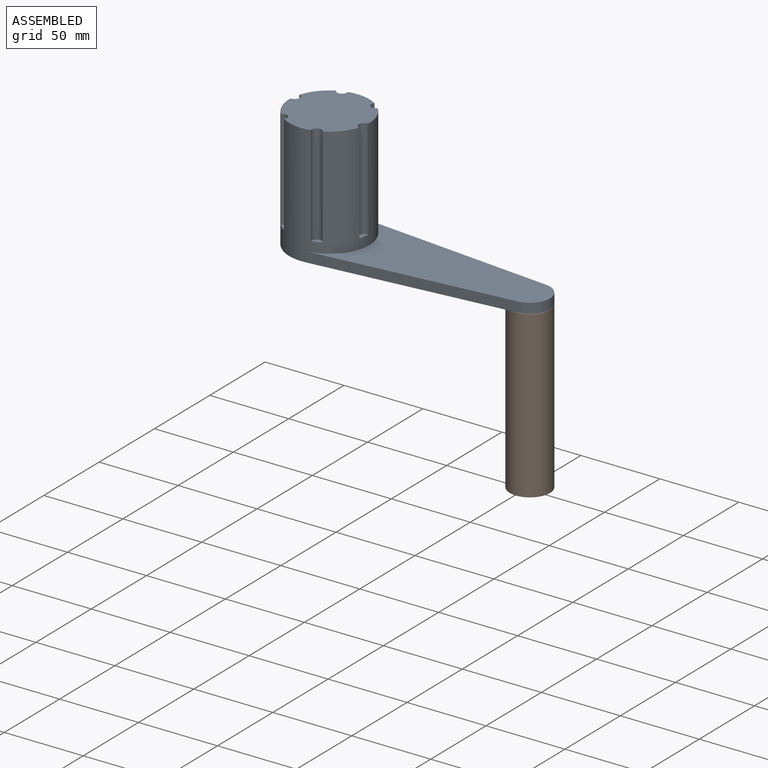
[diagram: assembled view]
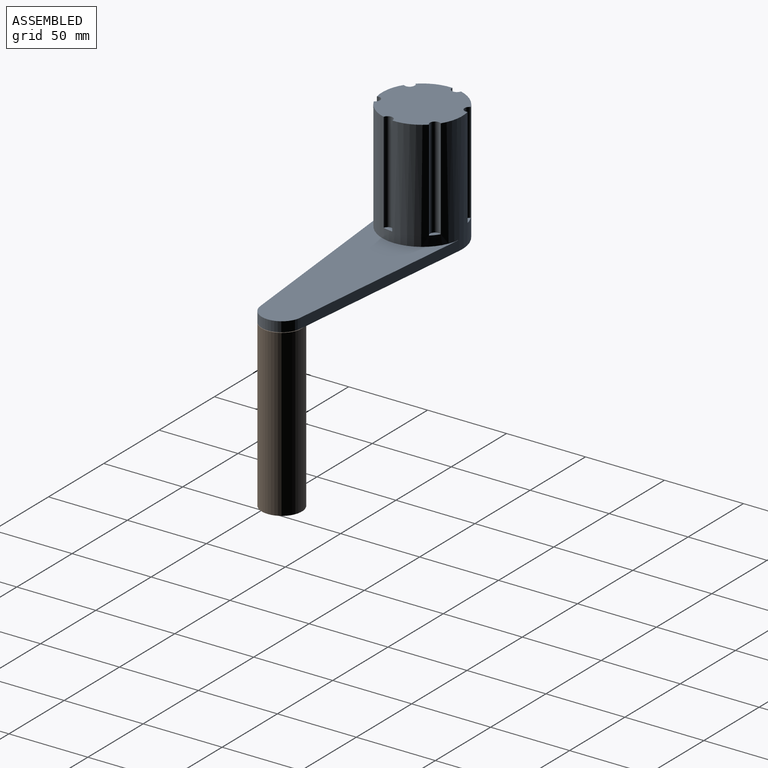
[diagram: assembled view, second angle]
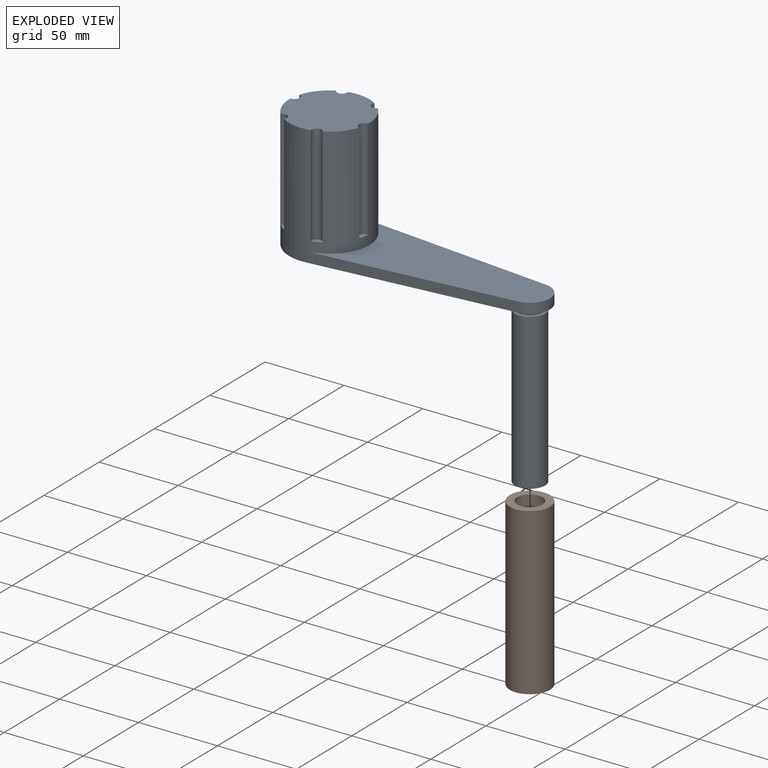
[diagram: exploded view]
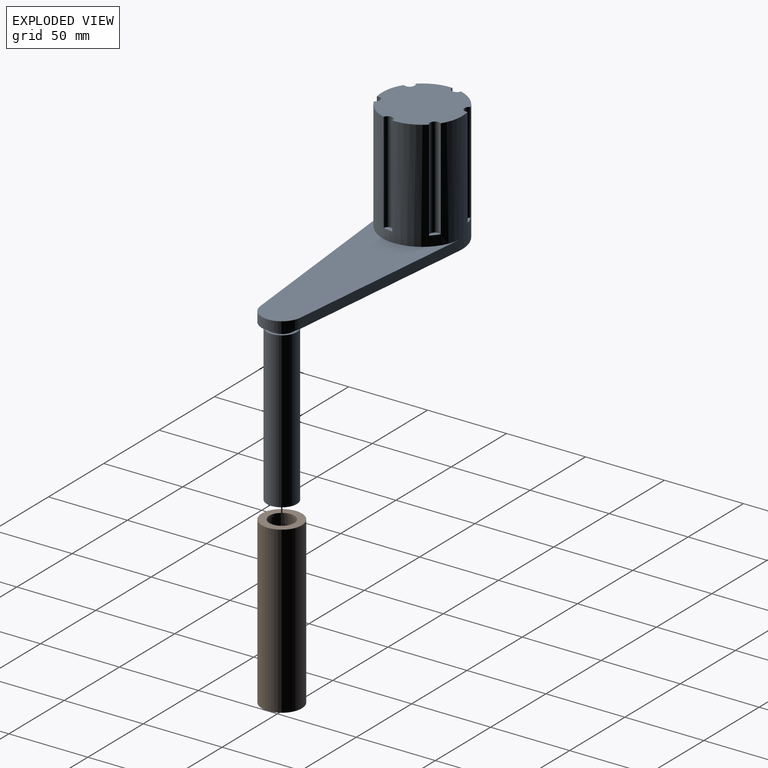
[diagram: exploded view, second angle]
ASSEMBLY  parts=2 mates=2
PART A: 23 faces, bbox 165.1x50.8x177.8 mm
  f0: plane 6.26x3.53mm, normal (0,0,1), area 15.4mm2, adj f1,f10
  f1: cylinder r=3.17mm len=63.5mm, axis (0,0,1), area 608.2mm2, adj f0,f10,f16
  f2: plane 5.48x5.06mm, normal (0,0,1), area 15.4mm2, adj f3,f10
  f3: cylinder r=3.17mm len=63.5mm, axis (0,0,1), area 608.2mm2, adj f2,f10,f16
  f4: plane 6.09x4.07mm, normal (0,0,1), area 15.4mm2, adj f5,f10
  f5: cylinder r=3.17mm len=63.5mm, axis (0,0,1), area 608.2mm2, adj f4,f10,f16
  f6: plane 6.26x3.53mm, normal (0,0,1), area 15.4mm2, adj f7,f10
  f7: cylinder r=3.17mm len=63.5mm, axis (0,0,1), area 608.2mm2, adj f6,f10,f16
  f8: plane 5.48x5.06mm, normal (0,0,1), area 15.4mm2, adj f9,f10
  f9: cylinder r=3.17mm len=63.5mm, axis (0,0,1), area 608.2mm2, adj f8,f10,f16
  f10: cylinder r=25.4mm len=76.2mm, axis (0,0,-1), area 9265.7mm2, adj f0,f1,f2,f3,f4,f5,f6,f7
  f11: plane 125.73x12.64mm, normal (0.1,-0.99,0), area 802.4mm2, adj f10,f12,f14,f15
  f12: cylinder r=12.7mm len=25.27mm, axis (0,0,-1), area 237.2mm2, adj f11,f13,f14,f15
  f13: plane 125.73x12.64mm, normal (0.1,0.99,0), area 802.4mm2, adj f10,f12,f14,f15
  f14: plane 137.16x50.55mm, normal (0,0,1), area 4102.9mm2, adj f10,f11,f12,f13
  f15: plane 165.1x50.8mm, normal (0,0,-1), area 5931.7mm2, adj f10,f11,f12,f13,f19
  f16: plane 50.8x50.8mm, normal (0,0,1), area 1934.3mm2, adj f1,f3,f5,f7,f9,f10,f18
  f17: plane 6.09x4.07mm, normal (0,0,1), area 15.4mm2, adj f10,f18
  f18: cylinder r=3.17mm len=63.5mm, axis (0,0,1), area 608.2mm2, adj f10,f16,f17
  f19: cylinder r=7.94mm len=15.88mm, axis (0,0,1), area 158.3mm2, adj f15,f20
  f20: plane 19.05x19.05mm, normal (0,0,1), area 87.1mm2, adj f19,f22
  f21: plane 19.05x19.05mm, normal (0,0,-1), area 285mm2, adj f22
  f22: cylinder r=9.53mm len=98.43mm, axis (0,0,1), area 5890.5mm2, adj f20,f21
PART B: 6 faces, bbox 25.4x25.4x104.8 mm
  f0: cylinder r=9.53mm len=103.19mm, axis (0,0,1), area 6175.5mm2, adj f1,f4
  f1: plane 25.4x25.4mm, normal (0,0,-1), area 221.7mm2, adj f0,f2
  f2: cylinder r=12.7mm len=104.78mm, axis (0,0,1), area 8360.7mm2, adj f1,f3
  f3: plane 25.4x25.4mm, normal (0,0,1), area 308.8mm2, adj f2,f5
  f4: plane 19.05x19.05mm, normal (0,0,-1), area 87.1mm2, adj f0,f5
  f5: cylinder r=7.94mm len=15.88mm, axis (0,0,1), area 79.2mm2, adj f3,f4
PLACE A t=(-33.16,148.52,10.59)mm
PLACE B t=(-33.16,148.52,10.34)mm
MATE planar A.f15 <-> B.f2  axis (0,0,-1) through (12.69,148.52,10.59)mm
MATE cylindrical B.f2 <-> A.f22  axis (0,0,1) through (93.84,148.52,-42.05)mm
